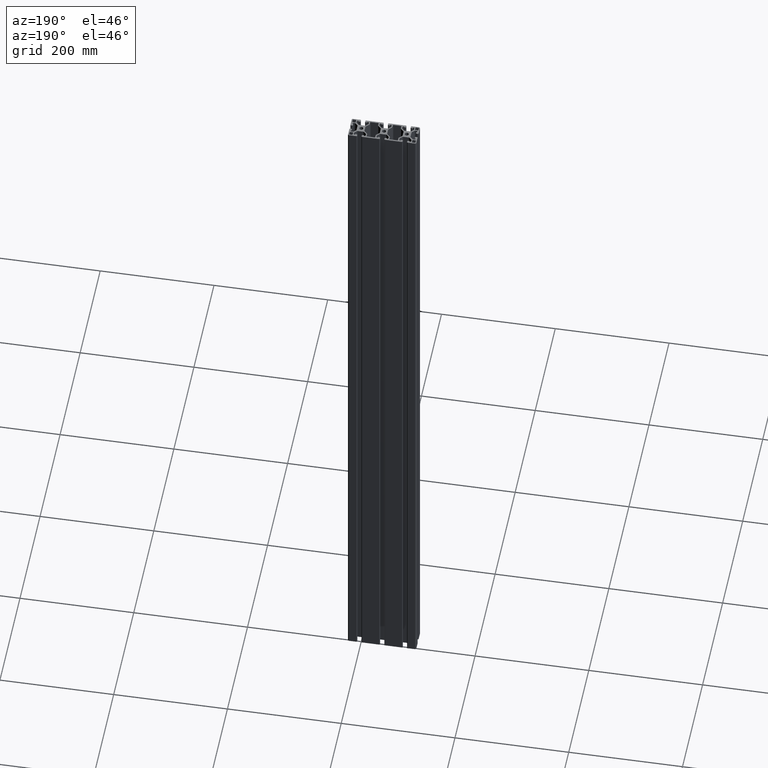
[diagram: clean part render]
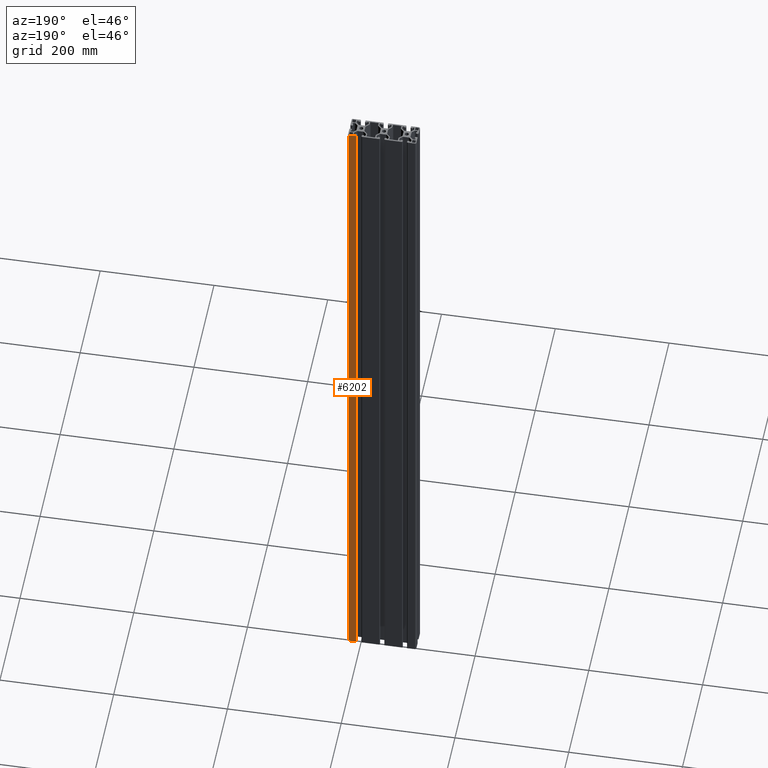
[diagram: same view with one face highlighted and labeled with its STEP entity id]
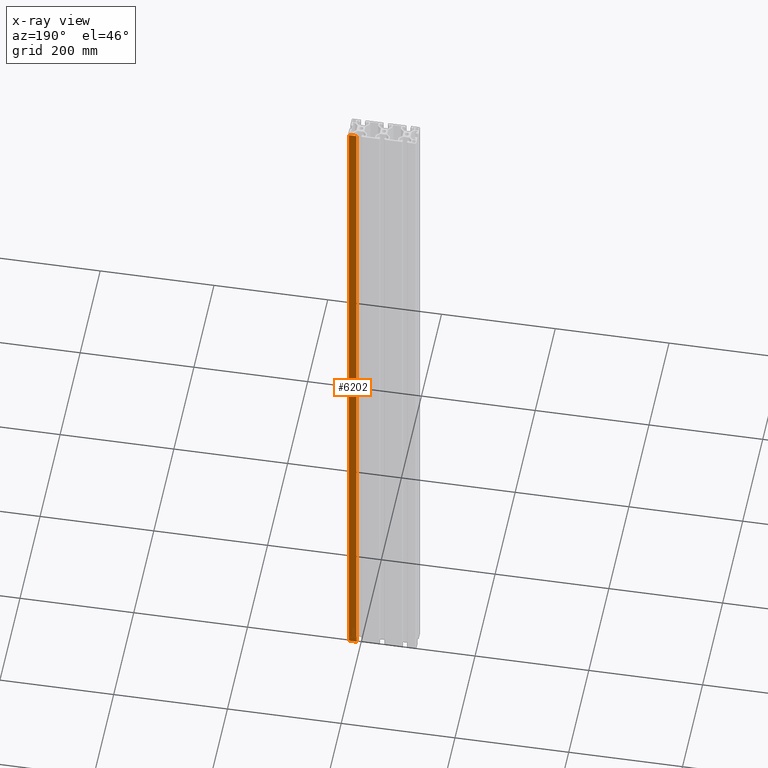
[diagram: x-ray of the same camera — body ghosted, the highlighted face saturated]
A machine part, auxiliary view. The second image highlights one B-rep face of the part: STEP entity #6202.
The next image is the same camera in x-ray: the body ghosted, the highlighted face saturated — about 0% of this face is hidden behind the body in this view.
In plain terms, the highlighted planar face has unit normal (0, 1, 0).
Its self-contained STEP definition (entity closure, byte-faithful):
#114=PLANE('',#6737);
#340=FACE_OUTER_BOUND('',#650,.T.);
#650=EDGE_LOOP('',(#4708,#4709,#4710,#4711));
#890=LINE('',#9052,#1501);
#1199=LINE('',#9953,#1810);
#1200=LINE('',#9956,#1811);
#1201=LINE('',#9957,#1812);
#1501=VECTOR('',#7187,12.999973996);
#1810=VECTOR('',#8076,1260.);
#1811=VECTOR('',#8079,12.9999739919491);
#1812=VECTOR('',#8080,1260.);
#2466=VERTEX_POINT('',#9049);
#2467=VERTEX_POINT('',#9051);
#2769=VERTEX_POINT('',#9951);
#2770=VERTEX_POINT('',#9955);
#3065=EDGE_CURVE('',#2466,#2467,#890,.T.);
#3516=EDGE_CURVE('',#2769,#2466,#1199,.T.);
#3517=EDGE_CURVE('',#2769,#2770,#1200,.T.);
#3518=EDGE_CURVE('',#2467,#2770,#1201,.T.);
#4708=ORIENTED_EDGE('',*,*,#3065,.F.);
#4709=ORIENTED_EDGE('',*,*,#3516,.F.);
#4710=ORIENTED_EDGE('',*,*,#3517,.T.);
#4711=ORIENTED_EDGE('',*,*,#3518,.F.);
#6202=ADVANCED_FACE('',(#340),#114,.T.);
#6737=AXIS2_PLACEMENT_3D('',#9954,#8077,#8078);
#7187=DIRECTION('',(1.,0.,0.));
#8076=DIRECTION('',(0.,0.,-1.));
#8077=DIRECTION('center_axis',(0.,1.,0.));
#8078=DIRECTION('ref_axis',(0.,0.,1.));
#8079=DIRECTION('',(1.,0.,0.));
#8080=DIRECTION('',(0.,0.,1.));
#9049=CARTESIAN_POINT('',(4.9999900146637,19.9999600097663,0.));
#9051=CARTESIAN_POINT('',(17.9999640106637,19.9999600097662,0.));
#9052=CARTESIAN_POINT('',(4.9999900146637,19.9999600097662,0.));
#9951=CARTESIAN_POINT('',(4.99999001466367,19.9999600097663,1260.));
#9953=CARTESIAN_POINT('',(4.9999900146637,19.9999600097663,1260.));
#9954=CARTESIAN_POINT('Origin',(17.9999640106637,19.9999600097662,0.));
#9955=CARTESIAN_POINT('',(17.9999640088633,19.9999600097663,1260.));
#9956=CARTESIAN_POINT('',(4.99999001466367,19.9999600097662,1260.));
#9957=CARTESIAN_POINT('',(17.9999640106637,19.9999600097663,0.));